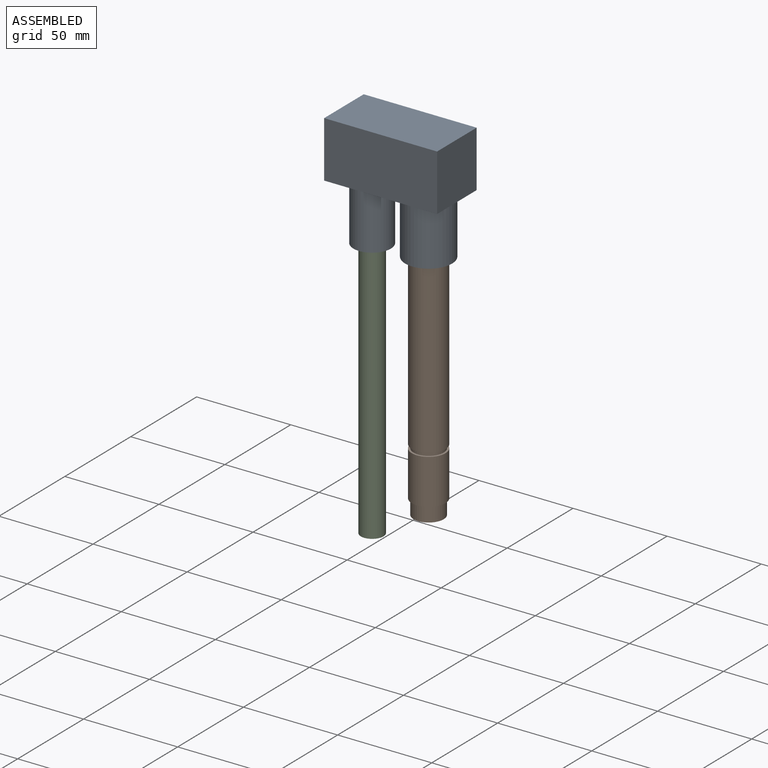
[diagram: assembled view]
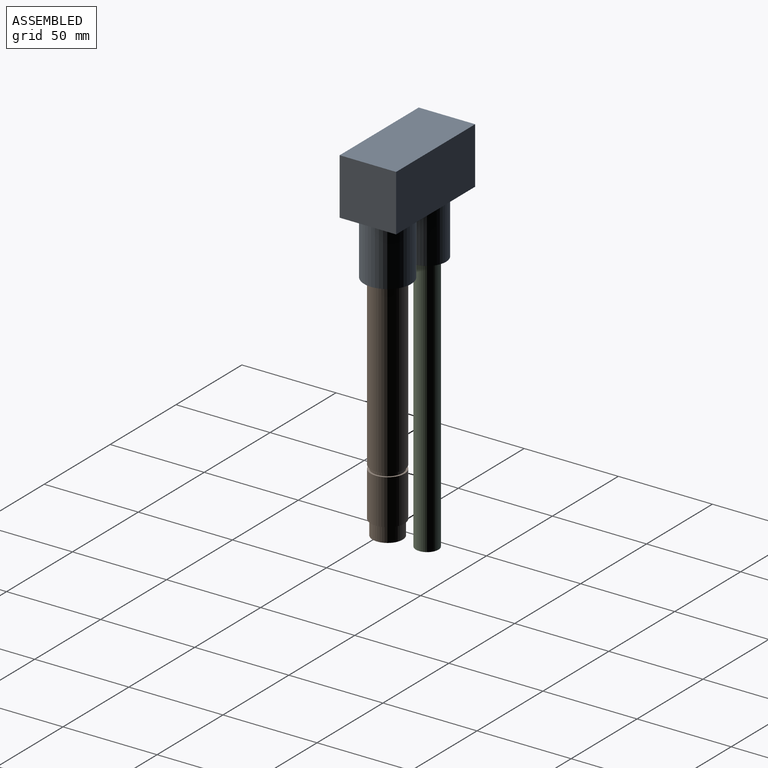
[diagram: assembled view, second angle]
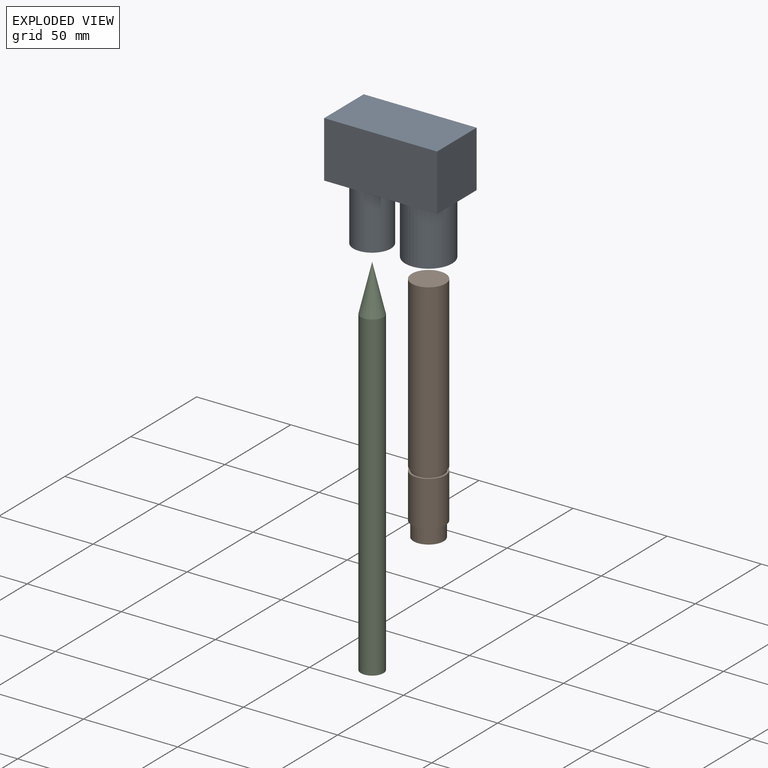
[diagram: exploded view]
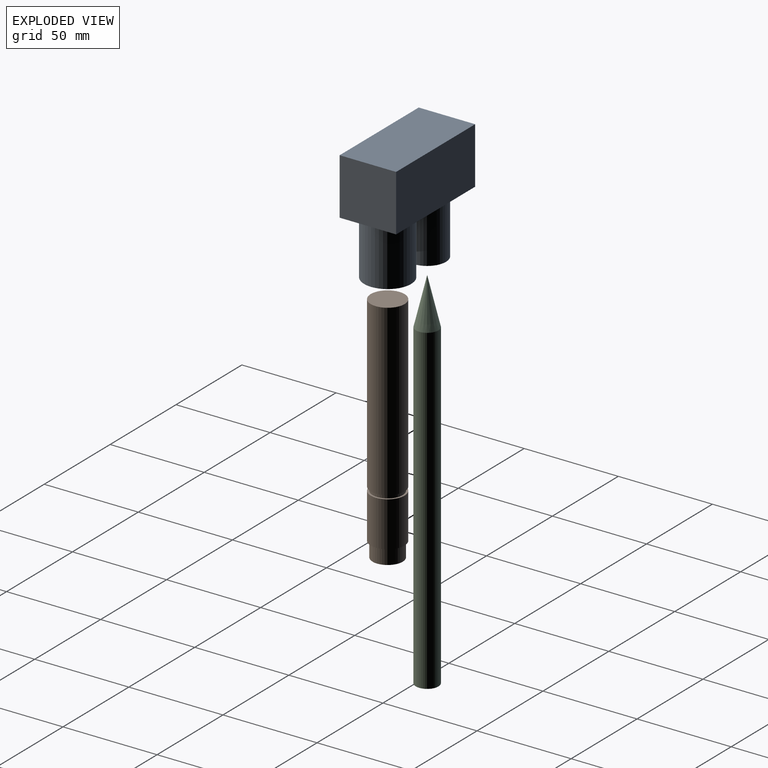
[diagram: exploded view, second angle]
ASSEMBLY  parts=3 mates=2
PART A: 12 faces, bbox 60x30x61.7 mm
  f0: plane 60x30mm, normal (0,1,0), area 1800mm2, adj f1,f3,f4,f5
  f1: plane 30x30mm, normal (-1,0,0), area 900mm2, adj f0,f2,f4,f5
  f2: plane 60x30mm, normal (0,-1,0), area 1800mm2, adj f1,f3,f4,f5
  f3: plane 30x30mm, normal (1,0,0), area 900mm2, adj f0,f2,f4,f5
  f4: plane 60x30mm, normal (0,0,1), area 995mm2, adj f0,f1,f2,f3,f6,f10
  f5: plane 60x30mm, normal (0,0,-1), area 1800mm2, adj f0,f1,f2,f3
  f6: cylinder r=12.5mm len=30.2mm, axis (0,0,-1), area 2371.9mm2, adj f4,f7
  f7: plane 25x25mm, normal (0,0,1), area 413.1mm2, adj f6,f8
  f8: cylinder r=4.98mm len=30.2mm, axis (0,0,-1), area 944.1mm2, adj f7,f9
  f9: plane 9.95x9.95mm, normal (0,0,1), area 77.8mm2, adj f8
  f10: cylinder r=10mm len=31.7mm, axis (0,0,-1), area 1991.8mm2, adj f4,f11
  f11: plane 20x20mm, normal (0,0,1), area 314.2mm2, adj f10
PART B: 9 faces, bbox 18x18x124 mm
  f0: cylinder r=9mm len=90mm, axis (0,0,1), area 5089.4mm2, adj f1,f8
  f1: plane 18x18mm, normal (0,0,-1), area 254.5mm2, adj f0
  f2: plane 16x16mm, normal (0,0,1), area 201.1mm2, adj f3
  f3: cylinder r=8mm len=16mm, axis (0,0,1), area 402.1mm2, adj f2,f4
  f4: plane 18x18mm, normal (0,0,1), area 53.4mm2, adj f3,f5
  f5: cylinder r=9mm len=24mm, axis (0,0,1), area 1357.2mm2, adj f4,f6
  f6: plane 18x18mm, normal (0,0,-1), area 53.4mm2, adj f5,f7
  f7: cylinder r=8mm len=16mm, axis (0,0,1), area 100.5mm2, adj f6,f8
  f8: plane 18x18mm, normal (0,0,1), area 53.4mm2, adj f0,f7
PART C: 3 faces, bbox 12x12x196 mm
  f0: cylinder r=6mm len=171mm, axis (0,0,1), area 6446.5mm2, adj f1,f2
  f1: cone r=6mm half-angle=13.5deg, axis (0,0,1), area 484.6mm2, adj f0
  f2: plane 12x12mm, normal (0,0,1), area 113.1mm2, adj f0
PLACE A rot(axis=(1,0,0),180deg) t=(-8.51,-54.62,-87.99)mm
PLACE B rot(axis=(1,0,0),180deg) t=(10.74,-42.04,-205.98)mm
PLACE C rot(axis=(1,0,0),180deg) t=(-22.24,-42.04,-205.46)mm
MATE slider C.f1 <-> A.f10  axis (0,0,-1) through (-22.24,-42.04,-117.99)mm
MATE cylindrical B.f0 <-> A.f6  axis (0,0,1) through (7.76,-42.04,-148.19)mm
